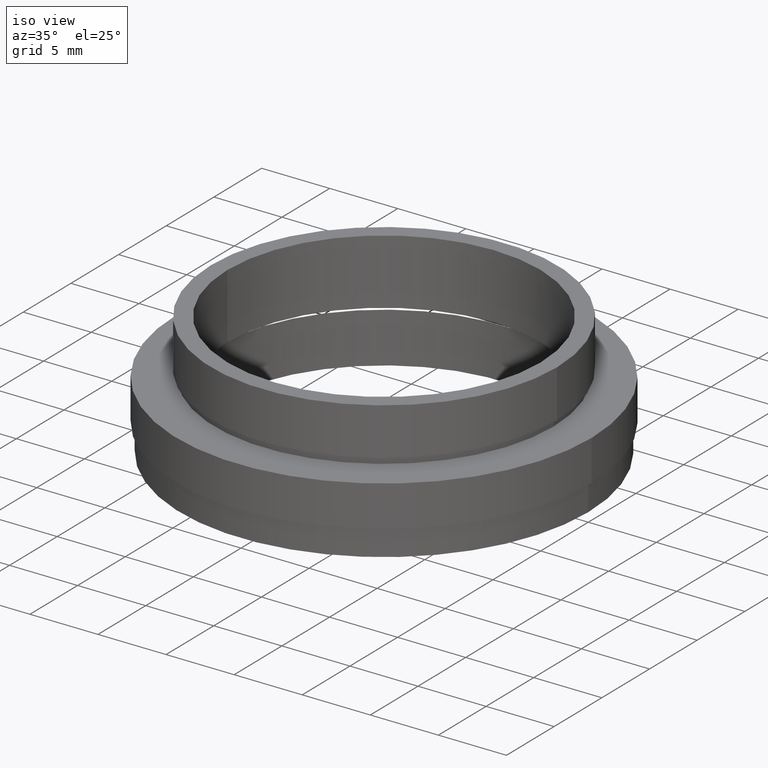
[diagram: clean part render]
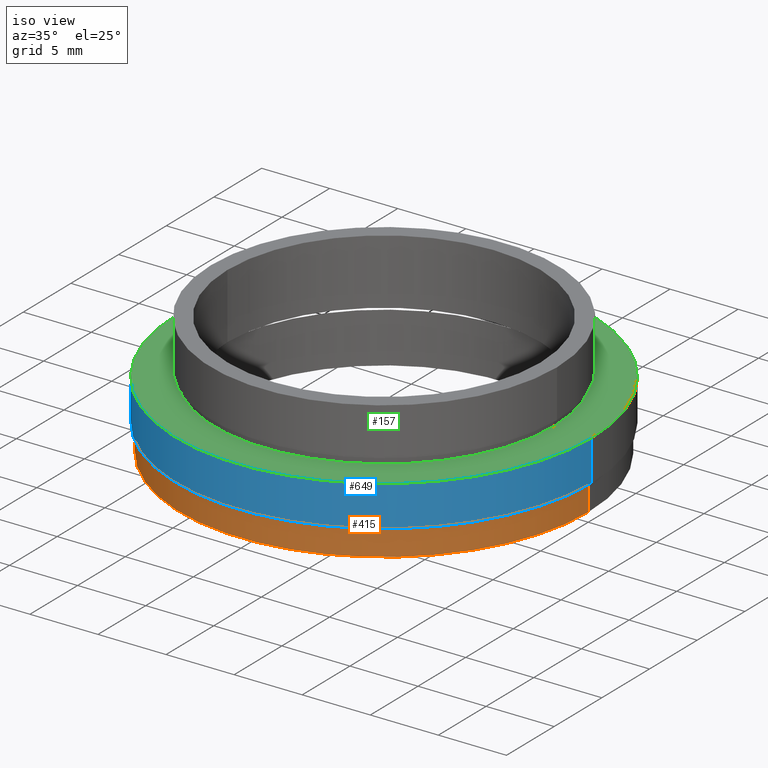
[diagram: same view with three faces highlighted in distinct colors, each labeled with its STEP entity id]
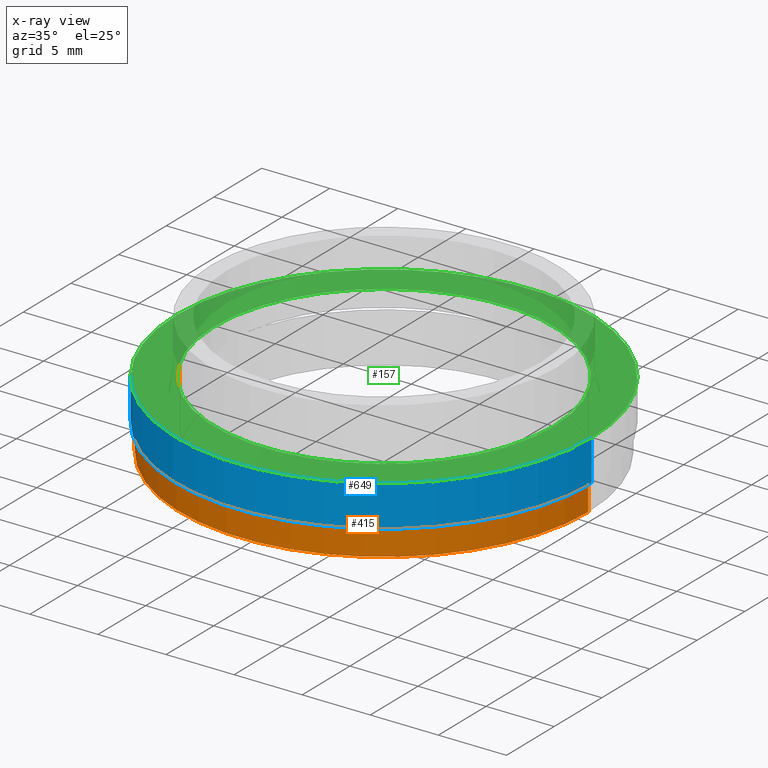
[diagram: x-ray of the same camera — body ghosted, the three highlighted faces saturated]
A machine part, iso view with three faces highlighted in distinct colors.
The next image is the same camera in x-ray (body ghosted, the three faces saturated) — at least one of them is partly hidden behind the body in this view.
Their STEP definitions:

[orange] entity #415 — the highlighted cylindrical surface (partial cylindrical patch) has radius 15 mm, axis along (-0, -0, 1).
#2 = ORIENTED_EDGE ( 'NONE', *, *, #261, .F. ) ;
#29 = DIRECTION ( 'NONE',  ( 1.000000000000000000, 0.0000000000000000000, 0.0000000000000000000 ) ) ;
#70 = FACE_OUTER_BOUND ( 'NONE', #803, .T. ) ;
#77 = EDGE_CURVE ( 'NONE', #542, #556, #561, .T. ) ;
#89 = DIRECTION ( 'NONE',  ( -0.0000000000000000000, -0.0000000000000000000, 1.000000000000000000 ) ) ;
#107 = VERTEX_POINT ( 'NONE', #222 ) ;
#121 = CARTESIAN_POINT ( 'NONE',  ( -15.00000000000000000, 1.836970198721029600E-015, 222.4624572051069700 ) ) ;
#141 = VECTOR ( 'NONE', #586, 1000.000000000000000 ) ;
#153 = CARTESIAN_POINT ( 'NONE',  ( 0.0000000000000000000, 0.0000000000000000000, 222.4624572051069700 ) ) ;
#162 = CYLINDRICAL_SURFACE ( 'NONE', #587, 15.00000000000000000 ) ;
#171 = VERTEX_POINT ( 'NONE', #697 ) ;
#187 = AXIS2_PLACEMENT_3D ( 'NONE', #548, #89, #487 ) ;
#217 = DIRECTION ( 'NONE',  ( 1.000000000000000000, 0.0000000000000000000, 0.0000000000000000000 ) ) ;
#222 = CARTESIAN_POINT ( 'NONE',  ( 15.00000000000000000, 0.0000000000000000000, -7.000000000000006200 ) ) ;
#227 = DIRECTION ( 'NONE',  ( -0.0000000000000000000, -0.0000000000000000000, 1.000000000000000000 ) ) ;
#239 = LINE ( 'NONE', #823, #736 ) ;
#245 = CIRCLE ( 'NONE', #187, 15.00000000000000000 ) ;
#256 = ORIENTED_EDGE ( 'NONE', *, *, #77, .T. ) ;
#261 = EDGE_CURVE ( 'NONE', #542, #171, #644, .T. ) ;
#398 = CARTESIAN_POINT ( 'NONE',  ( 15.00000000000000000, 0.0000000000000000000, -9.000000000000007100 ) ) ;
#414 = EDGE_CURVE ( 'NONE', #171, #107, #245, .T. ) ;
#415 = ADVANCED_FACE ( 'NONE', ( #70 ), #162, .T. ) ;
#464 = ORIENTED_EDGE ( 'NONE', *, *, #414, .F. ) ;
#487 = DIRECTION ( 'NONE',  ( 1.000000000000000000, 0.0000000000000000000, 0.0000000000000000000 ) ) ;
#491 = DIRECTION ( 'NONE',  ( -0.0000000000000000000, -0.0000000000000000000, 1.000000000000000000 ) ) ;
#542 = VERTEX_POINT ( 'NONE', #792 ) ;
#548 = CARTESIAN_POINT ( 'NONE',  ( 0.0000000000000000000, 0.0000000000000000000, -7.000000000000006200 ) ) ;
#556 = VERTEX_POINT ( 'NONE', #398 ) ;
#561 = CIRCLE ( 'NONE', #799, 15.00000000000000000 ) ;
#583 = ORIENTED_EDGE ( 'NONE', *, *, #631, .T. ) ;
#586 = DIRECTION ( 'NONE',  ( -0.0000000000000000000, -0.0000000000000000000, 1.000000000000000000 ) ) ;
#587 = AXIS2_PLACEMENT_3D ( 'NONE', #153, #742, #217 ) ;
#631 = EDGE_CURVE ( 'NONE', #556, #107, #239, .T. ) ;
#644 = LINE ( 'NONE', #121, #141 ) ;
#697 = CARTESIAN_POINT ( 'NONE',  ( -15.00000000000000000, 1.836970198721029600E-015, -7.000000000000006200 ) ) ;
#736 = VECTOR ( 'NONE', #227, 1000.000000000000000 ) ;
#742 = DIRECTION ( 'NONE',  ( -0.0000000000000000000, -0.0000000000000000000, 1.000000000000000000 ) ) ;
#745 = CARTESIAN_POINT ( 'NONE',  ( 0.0000000000000000000, 0.0000000000000000000, -9.000000000000007100 ) ) ;
#792 = CARTESIAN_POINT ( 'NONE',  ( -15.00000000000000000, 1.836970198721029600E-015, -9.000000000000007100 ) ) ;
#799 = AXIS2_PLACEMENT_3D ( 'NONE', #745, #491, #29 ) ;
#803 = EDGE_LOOP ( 'NONE', ( #2, #256, #583, #464 ) ) ;
#823 = CARTESIAN_POINT ( 'NONE',  ( 15.00000000000000000, 0.0000000000000000000, 222.4624572051069700 ) ) ;

[blue] entity #649 — the highlighted cylindrical surface (partial cylindrical patch) has radius 15.25 mm, axis along (-0, -0, 1).
#10 = VERTEX_POINT ( 'NONE', #824 ) ;
#17 = CARTESIAN_POINT ( 'NONE',  ( 0.0000000000000000000, 0.0000000000000000000, -7.000000000000006200 ) ) ;
#37 = EDGE_LOOP ( 'NONE', ( #608, #345, #79, #251 ) ) ;
#50 = FACE_OUTER_BOUND ( 'NONE', #37, .T. ) ;
#78 = CARTESIAN_POINT ( 'NONE',  ( -15.25000000000000000, 1.867586368699713800E-015, 222.4624572051069700 ) ) ;
#79 = ORIENTED_EDGE ( 'NONE', *, *, #591, .T. ) ;
#102 = CIRCLE ( 'NONE', #758, 15.25000000000000000 ) ;
#126 = LINE ( 'NONE', #78, #298 ) ;
#143 = CARTESIAN_POINT ( 'NONE',  ( 15.25000000000000000, 0.0000000000000000000, 222.4624572051069700 ) ) ;
#173 = CARTESIAN_POINT ( 'NONE',  ( -15.25000000000000000, 1.867586368699713800E-015, -7.000000000000006200 ) ) ;
#174 = VERTEX_POINT ( 'NONE', #173 ) ;
#251 = ORIENTED_EDGE ( 'NONE', *, *, #544, .F. ) ;
#291 = CARTESIAN_POINT ( 'NONE',  ( 0.0000000000000000000, 0.0000000000000000000, 222.4624572051069700 ) ) ;
#298 = VECTOR ( 'NONE', #536, 1000.000000000000000 ) ;
#336 = CARTESIAN_POINT ( 'NONE',  ( 15.25000000000000000, 0.0000000000000000000, -4.000000000000003600 ) ) ;
#345 = ORIENTED_EDGE ( 'NONE', *, *, #432, .T. ) ;
#412 = DIRECTION ( 'NONE',  ( -0.0000000000000000000, -0.0000000000000000000, 1.000000000000000000 ) ) ;
#421 = AXIS2_PLACEMENT_3D ( 'NONE', #291, #820, #488 ) ;
#432 = EDGE_CURVE ( 'NONE', #174, #463, #102, .T. ) ;
#447 = DIRECTION ( 'NONE',  ( -0.0000000000000000000, -0.0000000000000000000, 1.000000000000000000 ) ) ;
#463 = VERTEX_POINT ( 'NONE', #660 ) ;
#488 = DIRECTION ( 'NONE',  ( 1.000000000000000000, 0.0000000000000000000, 0.0000000000000000000 ) ) ;
#495 = DIRECTION ( 'NONE',  ( -0.0000000000000000000, -0.0000000000000000000, 1.000000000000000000 ) ) ;
#536 = DIRECTION ( 'NONE',  ( -0.0000000000000000000, -0.0000000000000000000, 1.000000000000000000 ) ) ;
#544 = EDGE_CURVE ( 'NONE', #10, #795, #664, .T. ) ;
#591 = EDGE_CURVE ( 'NONE', #463, #795, #855, .T. ) ;
#608 = ORIENTED_EDGE ( 'NONE', *, *, #780, .F. ) ;
#610 = AXIS2_PLACEMENT_3D ( 'NONE', #635, #447, #844 ) ;
#635 = CARTESIAN_POINT ( 'NONE',  ( 0.0000000000000000000, 0.0000000000000000000, -4.000000000000003600 ) ) ;
#646 = VECTOR ( 'NONE', #495, 1000.000000000000000 ) ;
#649 = ADVANCED_FACE ( 'NONE', ( #50 ), #653, .T. ) ;
#653 = CYLINDRICAL_SURFACE ( 'NONE', #421, 15.25000000000000000 ) ;
#660 = CARTESIAN_POINT ( 'NONE',  ( 15.25000000000000000, 0.0000000000000000000, -7.000000000000006200 ) ) ;
#664 = CIRCLE ( 'NONE', #610, 15.25000000000000000 ) ;
#758 = AXIS2_PLACEMENT_3D ( 'NONE', #17, #412, #809 ) ;
#780 = EDGE_CURVE ( 'NONE', #174, #10, #126, .T. ) ;
#795 = VERTEX_POINT ( 'NONE', #336 ) ;
#809 = DIRECTION ( 'NONE',  ( 1.000000000000000000, 0.0000000000000000000, 0.0000000000000000000 ) ) ;
#820 = DIRECTION ( 'NONE',  ( -0.0000000000000000000, -0.0000000000000000000, 1.000000000000000000 ) ) ;
#824 = CARTESIAN_POINT ( 'NONE',  ( -15.25000000000000000, 1.867586368699713800E-015, -4.000000000000003600 ) ) ;
#844 = DIRECTION ( 'NONE',  ( 1.000000000000000000, 0.0000000000000000000, 0.0000000000000000000 ) ) ;
#855 = LINE ( 'NONE', #143, #646 ) ;

[green] entity #157 — the highlighted planar face has unit normal (0, 0, -1).
#10 = VERTEX_POINT ( 'NONE', #824 ) ;
#68 = CIRCLE ( 'NONE', #789, 12.44500000000000000 ) ;
#108 = DIRECTION ( 'NONE',  ( 0.0000000000000000000, 0.0000000000000000000, -1.000000000000000000 ) ) ;
#142 = EDGE_LOOP ( 'NONE', ( #213, #713 ) ) ;
#149 = VERTEX_POINT ( 'NONE', #569 ) ;
#157 = ADVANCED_FACE ( 'NONE', ( #367, #537 ), #170, .F. ) ;
#164 = EDGE_CURVE ( 'NONE', #149, #335, #68, .T. ) ;
#170 = PLANE ( 'NONE',  #838 ) ;
#213 = ORIENTED_EDGE ( 'NONE', *, *, #408, .T. ) ;
#220 = DIRECTION ( 'NONE',  ( 1.000000000000000000, 0.0000000000000000000, 0.0000000000000000000 ) ) ;
#233 = AXIS2_PLACEMENT_3D ( 'NONE', #286, #676, #220 ) ;
#250 = CARTESIAN_POINT ( 'NONE',  ( 12.44500000000000000, 0.0000000000000000000, -4.000000000000003600 ) ) ;
#286 = CARTESIAN_POINT ( 'NONE',  ( 0.0000000000000000000, 0.0000000000000000000, -4.000000000000003600 ) ) ;
#289 = AXIS2_PLACEMENT_3D ( 'NONE', #449, #849, #380 ) ;
#324 = EDGE_CURVE ( 'NONE', #335, #149, #469, .T. ) ;
#335 = VERTEX_POINT ( 'NONE', #250 ) ;
#336 = CARTESIAN_POINT ( 'NONE',  ( 15.25000000000000000, 0.0000000000000000000, -4.000000000000003600 ) ) ;
#343 = ORIENTED_EDGE ( 'NONE', *, *, #324, .F. ) ;
#367 = FACE_BOUND ( 'NONE', #709, .T. ) ;
#376 = DIRECTION ( 'NONE',  ( -0.0000000000000000000, -0.0000000000000000000, 1.000000000000000000 ) ) ;
#380 = DIRECTION ( 'NONE',  ( 1.000000000000000000, 0.0000000000000000000, 0.0000000000000000000 ) ) ;
#408 = EDGE_CURVE ( 'NONE', #795, #10, #423, .T. ) ;
#423 = CIRCLE ( 'NONE', #233, 15.25000000000000000 ) ;
#447 = DIRECTION ( 'NONE',  ( -0.0000000000000000000, -0.0000000000000000000, 1.000000000000000000 ) ) ;
#449 = CARTESIAN_POINT ( 'NONE',  ( 0.0000000000000000000, 0.0000000000000000000, -4.000000000000003600 ) ) ;
#469 = CIRCLE ( 'NONE', #289, 12.44500000000000000 ) ;
#475 = ORIENTED_EDGE ( 'NONE', *, *, #164, .F. ) ;
#505 = CARTESIAN_POINT ( 'NONE',  ( 0.0000000000000000000, 12.44500000000000000, -4.000000000000000000 ) ) ;
#537 = FACE_OUTER_BOUND ( 'NONE', #142, .T. ) ;
#544 = EDGE_CURVE ( 'NONE', #10, #795, #664, .T. ) ;
#569 = CARTESIAN_POINT ( 'NONE',  ( -12.44500000000000000, 1.524072941538881100E-015, -4.000000000000003600 ) ) ;
#573 = DIRECTION ( 'NONE',  ( -1.000000000000000000, 0.0000000000000000000, -0.0000000000000000000 ) ) ;
#610 = AXIS2_PLACEMENT_3D ( 'NONE', #635, #447, #844 ) ;
#635 = CARTESIAN_POINT ( 'NONE',  ( 0.0000000000000000000, 0.0000000000000000000, -4.000000000000003600 ) ) ;
#664 = CIRCLE ( 'NONE', #610, 15.25000000000000000 ) ;
#676 = DIRECTION ( 'NONE',  ( -0.0000000000000000000, -0.0000000000000000000, 1.000000000000000000 ) ) ;
#709 = EDGE_LOOP ( 'NONE', ( #343, #475 ) ) ;
#713 = ORIENTED_EDGE ( 'NONE', *, *, #544, .T. ) ;
#767 = CARTESIAN_POINT ( 'NONE',  ( 0.0000000000000000000, 0.0000000000000000000, -4.000000000000003600 ) ) ;
#789 = AXIS2_PLACEMENT_3D ( 'NONE', #767, #376, #842 ) ;
#795 = VERTEX_POINT ( 'NONE', #336 ) ;
#824 = CARTESIAN_POINT ( 'NONE',  ( -15.25000000000000000, 1.867586368699713800E-015, -4.000000000000003600 ) ) ;
#838 = AXIS2_PLACEMENT_3D ( 'NONE', #505, #108, #573 ) ;
#842 = DIRECTION ( 'NONE',  ( 1.000000000000000000, 0.0000000000000000000, 0.0000000000000000000 ) ) ;
#844 = DIRECTION ( 'NONE',  ( 1.000000000000000000, 0.0000000000000000000, 0.0000000000000000000 ) ) ;
#849 = DIRECTION ( 'NONE',  ( -0.0000000000000000000, -0.0000000000000000000, 1.000000000000000000 ) ) ;